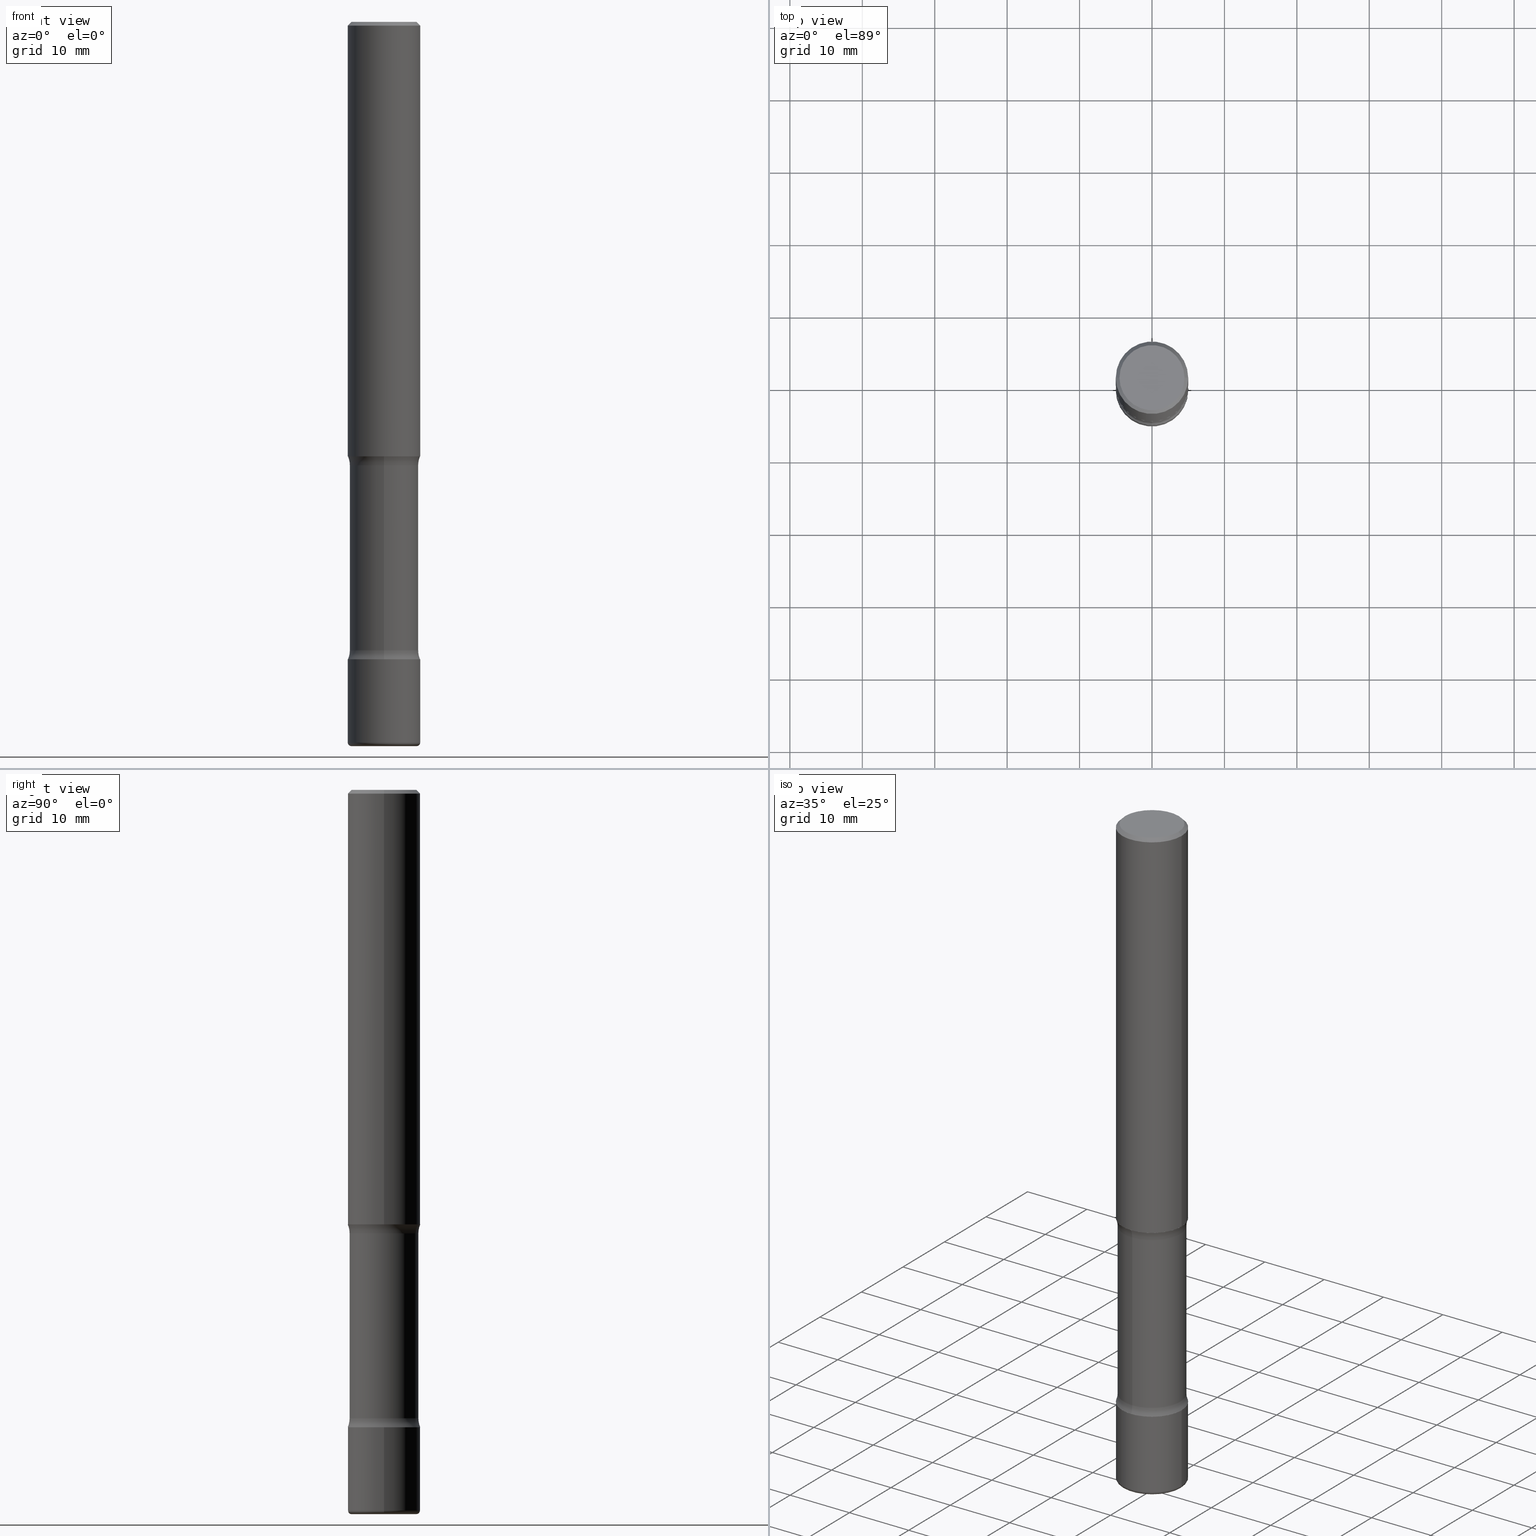
[diagram: canonical four-view strip — front | top / right | iso, engineering-drawing reading convention]
A machine part, canonical four-view strip (front | top / right | iso — engineering-drawing reading convention). The complete STEP part file that produces these views, byte-faithful:
ISO-10303-21;
HEADER;
FILE_DESCRIPTION (( 'STEP AP203' ),
    '1' );
FILE_NAME ('45191.STEP',
    '2024-03-02T05:09:36',
    ( '' ),
    ( '' ),
    'SwSTEP 2.0',
    'SolidWorks 2023',
    '' );
FILE_SCHEMA (( 'CONFIG_CONTROL_DESIGN' ));
ENDSEC;

DATA;
#1 = ORIENTED_EDGE ( 'NONE', *, *, #170, .F. ) ;
#2 = PERSON_AND_ORGANIZATION_ROLE ( 'creator' ) ;
#3 = DIRECTION ( 'NONE',  ( -2.445468806185136597E-29, 3.491481338843145583E-15, 1.000000000000000000 ) ) ;
#4 = ORIENTED_EDGE ( 'NONE', *, *, #67, .F. ) ;
#5 = DIRECTION ( 'NONE',  ( -2.445468806185136597E-29, 3.491481338843145583E-15, 1.000000000000000000 ) ) ;
#6 = EDGE_CURVE ( 'NONE', #455, #334, #110, .T. ) ;
#7 = AXIS2_PLACEMENT_3D ( 'NONE', #384, #115, #289 ) ;
#8 = CARTESIAN_POINT ( 'NONE',  ( -2.140475375304634878E-15, -0.3120000000000120455, -3.415963825191530745 ) ) ;
#9 = ORIENTED_EDGE ( 'NONE', *, *, #209, .T. ) ;
#10 = EDGE_CURVE ( 'NONE', #535, #131, #158, .T. ) ;
#11 = CARTESIAN_POINT ( 'NONE',  ( 5.776686413970530874E-29, -8.247577218615281204E-15, -2.362200000000000966 ) ) ;
#12 = CARTESIAN_POINT ( 'NONE',  ( 0.1771500000000001129, -1.498299386937758739E-14, -3.937000000000000277 ) ) ;
#13 = EDGE_CURVE ( 'NONE', #221, #528, #420, .T. ) ;
#14 = EDGE_CURVE ( 'NONE', #86, #58, #79, .T. ) ;
#15 = CARTESIAN_POINT ( 'NONE',  ( 5.776686413970530874E-29, -8.247577218615281204E-15, -2.362200000000000966 ) ) ;
#16 = ORIENTED_EDGE ( 'NONE', *, *, #10, .F. ) ;
#17 = CIRCLE ( 'NONE', #133, 0.1250000000000000278 ) ;
#18 = AXIS2_PLACEMENT_3D ( 'NONE', #448, #322, #234 ) ;
#19 = DIRECTION ( 'NONE',  ( 6.982962677686266711E-15, 1.000000000000000000, -2.921762560068727439E-15 ) ) ;
#20 = ORIENTED_EDGE ( 'NONE', *, *, #554, .T. ) ;
#21 = MANIFOLD_SOLID_BREP ( 'Body-Move/Copy2[1]', #356 ) ;
#22 = LINE ( 'NONE', #279, #178 ) ;
#23 = VERTEX_POINT ( 'NONE', #12 ) ;
#24 = CARTESIAN_POINT ( 'NONE',  ( 0.000000000000000000, 0.000000000000000000, 0.000000000000000000 ) ) ;
#25 = ORIENTED_EDGE ( 'NONE', *, *, #6, .F. ) ;
#26 = CIRCLE ( 'NONE', #140, 0.1968499999999999139 ) ;
#27 = PRODUCT_DEFINITION_FORMATION_WITH_SPECIFIED_SOURCE ( 'ANY', '', #61, .NOT_KNOWN. ) ;
#28 =( NAMED_UNIT ( * ) SI_UNIT ( $, .STERADIAN. ) SOLID_ANGLE_UNIT ( ) );
#29 = FACE_OUTER_BOUND ( 'NONE', #65, .T. ) ;
#30 = CC_DESIGN_PERSON_AND_ORGANIZATION_ASSIGNMENT ( #243, #198, ( #329 ) ) ;
#31 = CARTESIAN_POINT ( 'NONE',  ( 1.234936949548815012E-15, 0.1768499999999998407, -6.153342185293596592E-16 ) ) ;
#32 = CARTESIAN_POINT ( 'NONE',  ( 4.890937612370289799E-31, -6.982962677686315028E-17, -0.02000000000000006981 ) ) ;
#33 = EDGE_CURVE ( 'NONE', #334, #455, #223, .T. ) ;
#34 = DIRECTION ( 'NONE',  ( 6.982962677686265922E-15, 1.000000000000000000, -3.240269232523581255E-15 ) ) ;
#35 = AXIS2_PLACEMENT_3D ( 'NONE', #512, #127, #301 ) ;
#36 = DIRECTION ( 'NONE',  ( -1.000000000000000000, 6.982962677686265922E-15, -4.876176775795935793E-29 ) ) ;
#37 = FACE_OUTER_BOUND ( 'NONE', #148, .T. ) ;
#38 = FACE_OUTER_BOUND ( 'NONE', #42, .T. ) ;
#39 = DIRECTION ( 'NONE',  ( -2.445468806185136597E-29, 3.491481338843145583E-15, 1.000000000000000000 ) ) ;
#40 = AXIS2_PLACEMENT_3D ( 'NONE', #427, #5, #349 ) ;
#41 = AXIS2_PLACEMENT_3D ( 'NONE', #360, #64, #273 ) ;
#42 = EDGE_LOOP ( 'NONE', ( #397, #449, #25, #187 ) ) ;
#43 = COORDINATED_UNIVERSAL_TIME_OFFSET ( 5, 0, .BEHIND. ) ;
#44 = DIRECTION ( 'NONE',  ( 6.860497997771529985E-15, 1.000000000000000000, 0.000000000000000000 ) ) ;
#45 = ORIENTED_EDGE ( 'NONE', *, *, #10, .T. ) ;
#46 = APPROVAL_DATE_TIME ( #520, #248 ) ;
#47 = FACE_OUTER_BOUND ( 'NONE', #260, .T. ) ;
#48 = EDGE_LOOP ( 'NONE', ( #525, #20 ) ) ;
#49 = EDGE_CURVE ( 'NONE', #350, #23, #51, .T. ) ;
#50 = CARTESIAN_POINT ( 'NONE',  ( -0.1968499999999999139, 1.304766576325677916E-15, -0.02000000000000006981 ) ) ;
#51 = CIRCLE ( 'NONE', #372, 0.1771500000000001129 ) ;
#52 = VECTOR ( 'NONE', #415, 39.37007874015748143 ) ;
#53 = ORIENTED_EDGE ( 'NONE', *, *, #6, .T. ) ;
#54 = LOCAL_TIME ( 0, 9, 36.00000000000000000, #437 ) ;
#55 = FACE_OUTER_BOUND ( 'NONE', #230, .T. ) ;
#56 = ORIENTED_EDGE ( 'NONE', *, *, #367, .T. ) ;
#57 = LINE ( 'NONE', #59, #254 ) ;
#58 = VERTEX_POINT ( 'NONE', #205 ) ;
#59 = CARTESIAN_POINT ( 'NONE',  ( -0.1968500000000000250, 1.398703375343757393E-15, -9.682923725166783677E-30 ) ) ;
#60 = EDGE_LOOP ( 'NONE', ( #370, #97 ) ) ;
#61 = PRODUCT ( '45191', '45191', '', ( #468 ) ) ;
#62 = CC_DESIGN_PERSON_AND_ORGANIZATION_ASSIGNMENT ( #93, #305, ( #27 ) ) ;
#63 = LOCAL_TIME ( 0, 9, 36.00000000000000000, #43 ) ;
#64 = DIRECTION ( 'NONE',  ( 2.445468806185136597E-29, -3.491481338843145583E-15, -1.000000000000000000 ) ) ;
#65 = EDGE_LOOP ( 'NONE', ( #95, #284 ) ) ;
#66 = DIRECTION ( 'NONE',  ( -2.445468806185136877E-29, 3.491481338843145188E-15, 1.000000000000000000 ) ) ;
#67 = EDGE_CURVE ( 'NONE', #23, #453, #513, .T. ) ;
#68 = DIRECTION ( 'NONE',  ( -2.445468806185136597E-29, 3.491481338843145583E-15, 1.000000000000000000 ) ) ;
#69 = COORDINATED_UNIVERSAL_TIME_OFFSET ( 5, 0, .BEHIND. ) ;
#70 = CARTESIAN_POINT ( 'NONE',  ( 9.579634954469039174E-29, -1.367717984865026012E-14, -3.917300000000001337 ) ) ;
#71 = TOROIDAL_SURFACE ( 'NONE', #479, 0.3120000000000001106, 0.1250000000000000000 ) ;
#72 = CIRCLE ( 'NONE', #424, 0.1968500000000001360 ) ;
#73 = PLANE ( 'NONE',  #91 ) ;
#74 = FACE_OUTER_BOUND ( 'NONE', #428, .T. ) ;
#75 = EDGE_CURVE ( 'NONE', #496, #92, #345, .T. ) ;
#76 = CARTESIAN_POINT ( 'NONE',  ( -2.140475375304662094E-15, -0.3120000000000089369, -2.410836174808469679 ) ) ;
#77 =( CONVERSION_BASED_UNIT ( 'INCH', #204 ) LENGTH_UNIT ( ) NAMED_UNIT ( #222 ) );
#78 = CARTESIAN_POINT ( 'NONE',  ( -1.350489030861272970E-15, -0.1968500000000089345, -2.362200000000000077 ) ) ;
#79 = CIRCLE ( 'NONE', #469, 0.1968500000000001360 ) ;
#80 = PERSON_AND_ORGANIZATION ( #385, #459 ) ;
#81 = CARTESIAN_POINT ( 'NONE',  ( 1.305814020727429623E-15, 0.1869999999999864826, -3.937000000000001609 ) ) ;
#82 = CARTESIAN_POINT ( 'NONE',  ( 0.000000000000000000, 0.000000000000000000, 0.000000000000000000 ) ) ;
#83 = CALENDAR_DATE ( 2024, 2, 3 ) ;
#84 = FACE_OUTER_BOUND ( 'NONE', #537, .T. ) ;
#85 = CC_DESIGN_DATE_AND_TIME_ASSIGNMENT ( #426, #343, ( #311 ) ) ;
#86 = VERTEX_POINT ( 'NONE', #547 ) ;
#87 = SHAPE_DEFINITION_REPRESENTATION ( #261, #347 ) ;
#88 = CLOSED_SHELL ( 'NONE', ( #272, #124, #461, #288, #506, #314, #348, #450 ) ) ;
#89 = DIRECTION ( 'NONE',  ( 2.438088387897960049E-29, -3.491481338843145188E-15, -1.000000000000000000 ) ) ;
#90 = TOROIDAL_SURFACE ( 'NONE', #35, 0.3120000000000001106, 0.1250000000000000000 ) ;
#91 = AXIS2_PLACEMENT_3D ( 'NONE', #31, #462, #251 ) ;
#92 = VERTEX_POINT ( 'NONE', #551 ) ;
#93 = PERSON_AND_ORGANIZATION ( #385, #459 ) ;
#94 = CARTESIAN_POINT ( 'NONE',  ( 9.710679322936699330E-29, -1.362728943200010467E-14, -3.937000000000001165 ) ) ;
#95 = ORIENTED_EDGE ( 'NONE', *, *, #371, .F. ) ;
#96 = ADVANCED_FACE ( 'NONE', ( #74 ), #553, .F. ) ;
#97 = ORIENTED_EDGE ( 'NONE', *, *, #317, .F. ) ;
#98 = APPROVAL ( #337, 'UNSPECIFIED' ) ;
#99 = FACE_OUTER_BOUND ( 'NONE', #366, .T. ) ;
#100 = AXIS2_PLACEMENT_3D ( 'NONE', #116, #383, #460 ) ;
#101 = ORIENTED_EDGE ( 'NONE', *, *, #203, .T. ) ;
#102 = APPROVAL_PERSON_ORGANIZATION ( #511, #248, #302 ) ;
#103 = CARTESIAN_POINT ( 'NONE',  ( 9.579634954469039174E-29, -1.367717984865026012E-14, -3.917300000000001337 ) ) ;
#104 = ORIENTED_EDGE ( 'NONE', *, *, #227, .F. ) ;
#105 = CARTESIAN_POINT ( 'NONE',  ( -1.316701078222246809E-15, -0.1870000000000088813, -2.410836174808470567 ) ) ;
#106 = ORIENTED_EDGE ( 'NONE', *, *, #491, .F. ) ;
#107 = CC_DESIGN_PERSON_AND_ORGANIZATION_ASSIGNMENT ( #474, #2, ( #27 ) ) ;
#108 = CARTESIAN_POINT ( 'NONE',  ( 0.1968500000000000250, -1.374596203102541608E-15, 9.598753983154300858E-30 ) ) ;
#109 = ORIENTED_EDGE ( 'NONE', *, *, #227, .T. ) ;
#110 = CIRCLE ( 'NONE', #235, 0.1870000000000000551 ) ;
#111 = CONICAL_SURFACE ( 'NONE', #423, 0.1968499999999999139, 0.7853981633974479459 ) ;
#112 = CARTESIAN_POINT ( 'NONE',  ( 0.000000000000000000, 0.000000000000000000, 0.000000000000000000 ) ) ;
#113 = ORIENTED_EDGE ( 'NONE', *, *, #203, .F. ) ;
#114 = DIRECTION ( 'NONE',  ( 6.982962677686265922E-15, 1.000000000000000000, -2.775563112689114723E-15 ) ) ;
#115 = DIRECTION ( 'NONE',  ( -2.445468806185136597E-29, 3.491481338843145583E-15, 1.000000000000000000 ) ) ;
#116 = CARTESIAN_POINT ( 'NONE',  ( 5.776686413970530874E-29, -8.247577218615281204E-15, -2.362200000000000966 ) ) ;
#117 = AXIS2_PLACEMENT_3D ( 'NONE', #82, #39, #475 ) ;
#118 = TOROIDAL_SURFACE ( 'NONE', #126, 0.3120000000000002771, 0.1250000000000000278 ) ;
#119 = DIRECTION ( 'NONE',  ( 6.860497997771529985E-15, 1.000000000000000000, 0.000000000000000000 ) ) ;
#120 = COORDINATED_UNIVERSAL_TIME_OFFSET ( 5, 0, .BEHIND. ) ;
#121 = DIRECTION ( 'NONE',  ( 1.000000000000000000, -6.982962677686268288E-15, 0.000000000000000000 ) ) ;
#122 = DATE_AND_TIME ( #162, #550 ) ;
#123 = DIRECTION ( 'NONE',  ( 2.438088387897960049E-29, -3.491481338843145188E-15, -1.000000000000000000 ) ) ;
#124 = ADVANCED_FACE ( 'NONE', ( #163 ), #71, .F. ) ;
#125 = AXIS2_PLACEMENT_3D ( 'NONE', #358, #218, #128 ) ;
#126 = AXIS2_PLACEMENT_3D ( 'NONE', #286, #147, #487 ) ;
#127 = DIRECTION ( 'NONE',  ( 2.620889282446383185E-29, -3.240269232523581650E-15, -1.000000000000000000 ) ) ;
#128 = DIRECTION ( 'NONE',  ( 1.000000000000000000, -6.982962677686269077E-15, 4.883557194083113462E-29 ) ) ;
#129 = ORIENTED_EDGE ( 'NONE', *, *, #320, .T. ) ;
#130 = DIRECTION ( 'NONE',  ( 6.982962677686266711E-15, 1.000000000000000000, -2.921762560068727439E-15 ) ) ;
#131 = VERTEX_POINT ( 'NONE', #466 ) ;
#132 = FACE_OUTER_BOUND ( 'NONE', #363, .T. ) ;
#133 = AXIS2_PLACEMENT_3D ( 'NONE', #76, #503, #119 ) ;
#134 = VERTEX_POINT ( 'NONE', #78 ) ;
#135 = SECURITY_CLASSIFICATION_LEVEL ( 'unclassified' ) ;
#136 = APPROVAL ( #249, 'UNSPECIFIED' ) ;
#137 = DIRECTION ( 'NONE',  ( -2.445468806185136597E-29, 3.491481338843145583E-15, 1.000000000000000000 ) ) ;
#138 = ORIENTED_EDGE ( 'NONE', *, *, #317, .T. ) ;
#139 = FACE_OUTER_BOUND ( 'NONE', #490, .T. ) ;
#140 = AXIS2_PLACEMENT_3D ( 'NONE', #32, #379, #339 ) ;
#141 = EDGE_LOOP ( 'NONE', ( #287, #353 ) ) ;
#142 = EDGE_CURVE ( 'NONE', #221, #455, #338, .T. ) ;
#143 = FACE_OUTER_BOUND ( 'NONE', #174, .T. ) ;
#144 = ORIENTED_EDGE ( 'NONE', *, *, #510, .F. ) ;
#145 = DIRECTION ( 'NONE',  ( -2.445468806185136877E-29, 3.491481338843145188E-15, 1.000000000000000000 ) ) ;
#146 = DIRECTION ( 'NONE',  ( 6.982962677686266711E-15, 1.000000000000000000, -2.921762560068729806E-15 ) ) ;
#147 = DIRECTION ( 'NONE',  ( 2.620889282446383185E-29, -3.240269232523581650E-15, -1.000000000000000000 ) ) ;
#148 = EDGE_LOOP ( 'NONE', ( #258, #237, #104, #144 ) ) ;
#149 = CIRCLE ( 'NONE', #340, 0.1968500000000004690 ) ;
#150 = EDGE_CURVE ( 'NONE', #528, #134, #149, .T. ) ;
#151 =( LENGTH_UNIT ( ) NAMED_UNIT ( * ) SI_UNIT ( $, .METRE. ) );
#152 = DIRECTION ( 'NONE',  ( -2.445468806185136597E-29, 3.491481338843145583E-15, 1.000000000000000000 ) ) ;
#153 = EDGE_CURVE ( 'NONE', #439, #334, #421, .T. ) ;
#154 = DATE_TIME_ROLE ( 'creation_date' ) ;
#155 = DIRECTION ( 'NONE',  ( -2.445468806185136597E-29, 3.491481338843145583E-15, 1.000000000000000000 ) ) ;
#156 = ADVANCED_FACE ( 'NONE', ( #29 ), #377, .T. ) ;
#157 = DIRECTION ( 'NONE',  ( 1.000000000000000000, -6.982962677686274599E-15, 0.000000000000000000 ) ) ;
#158 = CIRCLE ( 'NONE', #309, 0.1968499999999999139 ) ;
#159 = CARTESIAN_POINT ( 'NONE',  ( -1.043851414335219820E-46, 1.490343170380447200E-32, 4.268512490100411279E-18 ) ) ;
#160 = EDGE_CURVE ( 'NONE', #532, #232, #177, .T. ) ;
#161 = CARTESIAN_POINT ( 'NONE',  ( 5.776686413970530874E-29, -8.247577218615281204E-15, -2.362200000000000966 ) ) ;
#162 = CALENDAR_DATE ( 2024, 2, 3 ) ;
#163 = FACE_OUTER_BOUND ( 'NONE', #313, .T. ) ;
#164 = APPROVAL_DATE_TIME ( #122, #98 ) ;
#165 = DIRECTION ( 'NONE',  ( 2.620889282446383185E-29, -3.240269232523581650E-15, -1.000000000000000000 ) ) ;
#166 = ADVANCED_FACE ( 'NONE', ( #37 ), #211, .T. ) ;
#167 = AXIS2_PLACEMENT_3D ( 'NONE', #210, #298, #470 ) ;
#168 = LINE ( 'NONE', #50, #451 ) ;
#169 = ORIENTED_EDGE ( 'NONE', *, *, #464, .F. ) ;
#170 = EDGE_CURVE ( 'NONE', #530, #453, #364, .T. ) ;
#171 = DIRECTION ( 'NONE',  ( -1.000000000000000000, 6.982962677686265922E-15, -4.876176775795935793E-29 ) ) ;
#172 = ORIENTED_EDGE ( 'NONE', *, *, #75, .F. ) ;
#173 = CARTESIAN_POINT ( 'NONE',  ( 8.472571225909027026E-29, -1.209658624655596689E-14, -3.464600000000001234 ) ) ;
#174 = EDGE_LOOP ( 'NONE', ( #271, #336, #228, #478 ) ) ;
#175 = CIRCLE ( 'NONE', #431, 0.1771500000000001129 ) ;
#176 = DIRECTION ( 'NONE',  ( 6.982962677686265922E-15, 1.000000000000000000, -3.240269232523581650E-15 ) ) ;
#177 = CIRCLE ( 'NONE', #167, 0.1768499999999998407 ) ;
#178 = VECTOR ( 'NONE', #452, 39.37007874015748143 ) ;
#179 = ORIENTED_EDGE ( 'NONE', *, *, #75, .T. ) ;
#180 = DIRECTION ( 'NONE',  ( -2.445468806185136597E-29, 3.491481338843145583E-15, 1.000000000000000000 ) ) ;
#181 = ORIENTED_EDGE ( 'NONE', *, *, #281, .T. ) ;
#182 = DIRECTION ( 'NONE',  ( 2.620889282446383185E-29, -3.240269232523582044E-15, -1.000000000000000000 ) ) ;
#183 = ORIENTED_EDGE ( 'NONE', *, *, #150, .T. ) ;
#184 = CC_DESIGN_PERSON_AND_ORGANIZATION_ASSIGNMENT ( #351, #556, ( #311 ) ) ;
#185 = CARTESIAN_POINT ( 'NONE',  ( 9.579634954469039174E-29, -1.367717984865026012E-14, -3.917300000000001337 ) ) ;
#186 = CIRCLE ( 'NONE', #422, 0.1968500000000004690 ) ;
#187 = ORIENTED_EDGE ( 'NONE', *, *, #142, .F. ) ;
#188 = CIRCLE ( 'NONE', #472, 0.1768499999999998407 ) ;
#189 = CARTESIAN_POINT ( 'NONE',  ( -0.1968500000000001082, 1.398703375343757985E-15, -9.682923725166787881E-30 ) ) ;
#190 = EDGE_CURVE ( 'NONE', #559, #455, #390, .T. ) ;
#191 = EDGE_LOOP ( 'NONE', ( #326, #106, #316, #183 ) ) ;
#192 = CARTESIAN_POINT ( 'NONE',  ( 4.890937612370289799E-31, -6.982962677686315028E-17, -0.02000000000000006981 ) ) ;
#193 = DIRECTION ( 'NONE',  ( 1.000000000000000000, -6.982962677686266711E-15, 0.000000000000000000 ) ) ;
#194 = DATE_AND_TIME ( #504, #226 ) ;
#195 = DIRECTION ( 'NONE',  ( -1.000000000000000000, 6.982962677686265922E-15, -4.883557194083112340E-29 ) ) ;
#196 = AXIS2_PLACEMENT_3D ( 'NONE', #112, #180, #401 ) ;
#197 = AXIS2_PLACEMENT_3D ( 'NONE', #15, #182, #362 ) ;
#198 = PERSON_AND_ORGANIZATION_ROLE ( 'creator' ) ;
#199 = DIRECTION ( 'NONE',  ( 2.620889282446383185E-29, -3.240269232523581650E-15, -1.000000000000000000 ) ) ;
#200 = APPLICATION_PROTOCOL_DEFINITION ( 'international standard', 'config_control_design', 1994, #292 ) ;
#201 = MANIFOLD_SOLID_BREP ( 'Body-Move/Copy2[4]', #88 ) ;
#202 = DIRECTION ( 'NONE',  ( -1.000000000000000000, 6.982962677686265922E-15, -4.883557194083112340E-29 ) ) ;
#203 = EDGE_CURVE ( 'NONE', #131, #535, #26, .T. ) ;
#204 = LENGTH_MEASURE_WITH_UNIT ( LENGTH_MEASURE( 0.02539999999999999897 ), #151 );
#205 = CARTESIAN_POINT ( 'NONE',  ( 0.1968500000000001360, -1.347118244965850850E-14, -3.464600000000001234 ) ) ;
#206 = TOROIDAL_SURFACE ( 'NONE', #262, 0.3120000000000002771, 0.1250000000000000278 ) ;
#207 = CC_DESIGN_APPROVAL ( #98, ( #27 ) ) ;
#208 = FACE_OUTER_BOUND ( 'NONE', #48, .T. ) ;
#209 = EDGE_CURVE ( 'NONE', #439, #134, #17, .T. ) ;
#210 = CARTESIAN_POINT ( 'NONE',  ( -1.043851414335219820E-46, 1.490343170380447200E-32, 4.268512490100411279E-18 ) ) ;
#211 = CYLINDRICAL_SURFACE ( 'NONE', #7, 0.1968500000000001082 ) ;
#212 = DIRECTION ( 'NONE',  ( 6.982962677686265133E-15, 1.000000000000000000, -2.775563112689110384E-15 ) ) ;
#213 = EDGE_LOOP ( 'NONE', ( #483, #181, #268, #488 ) ) ;
#214 = ADVANCED_FACE ( 'NONE', ( #463 ), #250, .T. ) ;
#215 = CIRCLE ( 'NONE', #541, 0.1870000000000002216 ) ;
#216 = CONICAL_SURFACE ( 'NONE', #41, 0.1968499999999999139, 0.7853981633974479459 ) ;
#217 = DIRECTION ( 'NONE',  ( -1.000000000000000000, 7.105427357600976615E-15, 0.000000000000000000 ) ) ;
#218 = DIRECTION ( 'NONE',  ( -2.445468806185136597E-29, 3.491481338843145583E-15, 1.000000000000000000 ) ) ;
#219 = ORIENTED_EDGE ( 'NONE', *, *, #392, .F. ) ;
#220 = CARTESIAN_POINT ( 'NONE',  ( -1.316701078222217030E-15, -0.1870000000000119900, -3.415963825191531189 ) ) ;
#221 = VERTEX_POINT ( 'NONE', #391 ) ;
#222 = DIMENSIONAL_EXPONENTS ( 1.000000000000000000, 0.000000000000000000, 0.000000000000000000, 0.000000000000000000, 0.000000000000000000, 0.000000000000000000, 0.000000000000000000 ) ;
#223 = CIRCLE ( 'NONE', #540, 0.1870000000000000551 ) ;
#224 = AXIS2_PLACEMENT_3D ( 'NONE', #482, #477, #217 ) ;
#225 = PLANE ( 'NONE',  #245 ) ;
#226 = LOCAL_TIME ( 0, 9, 36.00000000000000000, #69 ) ;
#227 = EDGE_CURVE ( 'NONE', #58, #86, #458, .T. ) ;
#228 = ORIENTED_EDGE ( 'NONE', *, *, #510, .T. ) ;
#229 = PLANE ( 'NONE',  #197 ) ;
#230 = EDGE_LOOP ( 'NONE', ( #412, #539, #240, #101 ) ) ;
#231 = DIRECTION ( 'NONE',  ( 2.620889282446383185E-29, -3.240269232523581650E-15, -1.000000000000000000 ) ) ;
#232 = VERTEX_POINT ( 'NONE', #557 ) ;
#233 = ADVANCED_FACE ( 'NONE', ( #132 ), #259, .T. ) ;
#234 = DIRECTION ( 'NONE',  ( 6.982962677686266711E-15, 1.000000000000000000, -2.921762560068729017E-15 ) ) ;
#235 = AXIS2_PLACEMENT_3D ( 'NONE', #278, #447, #146 ) ;
#236 = VECTOR ( 'NONE', #247, 39.37007874015748143 ) ;
#237 = ORIENTED_EDGE ( 'NONE', *, *, #494, .T. ) ;
#238 = APPROVAL_PERSON_ORGANIZATION ( #417, #98, #378 ) ;
#239 = FACE_OUTER_BOUND ( 'NONE', #60, .T. ) ;
#240 = ORIENTED_EDGE ( 'NONE', *, *, #269, .T. ) ;
#241 = DIRECTION ( 'NONE',  ( 1.000000000000000000, -6.982962677686268288E-15, 0.000000000000000000 ) ) ;
#242 = CARTESIAN_POINT ( 'NONE',  ( 2.178684355438173716E-15, 0.3119999999999915619, -2.410836174808471899 ) ) ;
#243 = PERSON_AND_ORGANIZATION ( #385, #459 ) ;
#244 = CARTESIAN_POINT ( 'NONE',  ( 9.627810689950883669E-29, -1.374596203102546341E-14, -3.937000000000000277 ) ) ;
#245 = AXIS2_PLACEMENT_3D ( 'NONE', #173, #396, #264 ) ;
#246 = CC_DESIGN_SECURITY_CLASSIFICATION ( #311, ( #27 ) ) ;
#247 = DIRECTION ( 'NONE',  ( 2.620889282446383185E-29, -3.240269232523582044E-15, -1.000000000000000000 ) ) ;
#248 = APPROVAL ( #481, 'UNSPECIFIED' ) ;
#249 = APPROVAL_STATUS ( 'not_yet_approved' ) ;
#250 = CYLINDRICAL_SURFACE ( 'NONE', #332, 0.1968500000000000250 ) ;
#251 = DIRECTION ( 'NONE',  ( -1.000000000000000000, 6.982962677686265922E-15, -4.876176775795935793E-29 ) ) ;
#252 = DIRECTION ( 'NONE',  ( 2.620889282446383185E-29, -3.240269232523581650E-15, -1.000000000000000000 ) ) ;
#253 = AXIS2_PLACEMENT_3D ( 'NONE', #161, #296, #555 ) ;
#254 = VECTOR ( 'NONE', #66, 39.37007874015748143 ) ;
#255 = APPROVAL_ROLE ( '' ) ;
#256 = DIRECTION ( 'NONE',  ( 6.982962677686265133E-15, 1.000000000000000000, -2.775563112689110384E-15 ) ) ;
#257 = DIRECTION ( 'NONE',  ( 2.620889282446383185E-29, -3.240269232523581650E-15, -1.000000000000000000 ) ) ;
#258 = ORIENTED_EDGE ( 'NONE', *, *, #467, .T. ) ;
#259 = CYLINDRICAL_SURFACE ( 'NONE', #117, 0.1968500000000000250 ) ;
#260 = EDGE_LOOP ( 'NONE', ( #400, #476, #324, #4 ) ) ;
#261 = PRODUCT_DEFINITION_SHAPE ( 'NONE', 'NONE',  #329 ) ;
#262 = AXIS2_PLACEMENT_3D ( 'NONE', #352, #344, #176 ) ;
#263 = AXIS2_PLACEMENT_3D ( 'NONE', #24, #419, #293 ) ;
#264 = DIRECTION ( 'NONE',  ( -6.982962677686265922E-15, -1.000000000000000000, 3.240269232523582044E-15 ) ) ;
#265 = ORIENTED_EDGE ( 'NONE', *, *, #14, .T. ) ;
#266 = EDGE_CURVE ( 'NONE', #350, #530, #533, .T. ) ;
#267 = CARTESIAN_POINT ( 'NONE',  ( 8.472571225909027026E-29, -1.209658624655596689E-14, -3.464600000000001234 ) ) ;
#268 = ORIENTED_EDGE ( 'NONE', *, *, #142, .T. ) ;
#269 = EDGE_CURVE ( 'NONE', #532, #131, #168, .T. ) ;
#270 = CARTESIAN_POINT ( 'NONE',  ( 8.472571225909027026E-29, -1.209658624655596689E-14, -3.464600000000001234 ) ) ;
#271 = ORIENTED_EDGE ( 'NONE', *, *, #494, .F. ) ;
#272 = ADVANCED_FACE ( 'NONE', ( #38 ), #388, .T. ) ;
#273 = DIRECTION ( 'NONE',  ( -1.000000000000000000, 6.982962677686266711E-15, 0.000000000000000000 ) ) ;
#274 =( GEOMETRIC_REPRESENTATION_CONTEXT ( 3 ) GLOBAL_UNCERTAINTY_ASSIGNED_CONTEXT ( ( #507 ) ) GLOBAL_UNIT_ASSIGNED_CONTEXT ( ( #77, #498, #28 ) ) REPRESENTATION_CONTEXT ( 'NONE', 'WORKASPACE' ) );
#275 = CARTESIAN_POINT ( 'NONE',  ( 4.890937612370289799E-31, -6.982962677686315028E-17, -0.02000000000000006981 ) ) ;
#276 = DESIGN_CONTEXT ( 'detailed design', #292, 'design' ) ;
#277 = DIRECTION ( 'NONE',  ( 2.445468806185136597E-29, -3.491481338843145583E-15, -1.000000000000000000 ) ) ;
#278 = CARTESIAN_POINT ( 'NONE',  ( 8.345101196614320923E-29, -1.193899194573644426E-14, -3.415963825191531633 ) ) ;
#279 = CARTESIAN_POINT ( 'NONE',  ( 0.1968499999999999139, -1.420318657638188530E-15, -0.02000000000000006981 ) ) ;
#280 = ORIENTED_EDGE ( 'NONE', *, *, #190, .T. ) ;
#281 = EDGE_CURVE ( 'NONE', #439, #221, #215, .T. ) ;
#282 = CYLINDRICAL_SURFACE ( 'NONE', #196, 0.1968500000000001082 ) ;
#283 = AXIS2_PLACEMENT_3D ( 'NONE', #267, #312, #438 ) ;
#284 = ORIENTED_EDGE ( 'NONE', *, *, #49, .F. ) ;
#285 = VECTOR ( 'NONE', #534, 39.37007874015748143 ) ;
#286 = CARTESIAN_POINT ( 'NONE',  ( 5.704860736508115224E-29, -8.690574314718193977E-15, -2.410836174808470567 ) ) ;
#287 = ORIENTED_EDGE ( 'NONE', *, *, #515, .T. ) ;
#288 = ADVANCED_FACE ( 'NONE', ( #527 ), #206, .F. ) ;
#289 = DIRECTION ( 'NONE',  ( 1.000000000000000000, -6.982962677686266711E-15, 4.876176775795935793E-29 ) ) ;
#290 = DIRECTION ( 'NONE',  ( 1.000000000000000000, -6.982962677686265922E-15, 0.000000000000000000 ) ) ;
#291 = TOROIDAL_SURFACE ( 'NONE', #125, 0.1771500000000001129, 0.01969999999999933263 ) ;
#292 = APPLICATION_CONTEXT ( 'configuration controlled 3d designs of mechanical parts and assemblies' ) ;
#293 = DIRECTION ( 'NONE',  ( 1.000000000000000000, 0.000000000000000000, 0.000000000000000000 ) ) ;
#294 = DIRECTION ( 'NONE',  ( -6.982962677686265133E-15, -1.000000000000000000, 0.000000000000000000 ) ) ;
#295 = ADVANCED_FACE ( 'NONE', ( #84 ), #306, .F. ) ;
#296 = DIRECTION ( 'NONE',  ( -2.445468806185136597E-29, 3.491481338843145583E-15, 1.000000000000000000 ) ) ;
#297 = APPLICATION_PROTOCOL_DEFINITION ( 'international standard', 'config_control_design', 1994, #405 ) ;
#298 = DIRECTION ( 'NONE',  ( -2.445468806185136597E-29, 3.491481338843145583E-15, 1.000000000000000000 ) ) ;
#299 = AXIS2_PLACEMENT_3D ( 'NONE', #270, #89, #171 ) ;
#300 = LOCAL_TIME ( 0, 9, 36.00000000000000000, #120 ) ;
#301 = DIRECTION ( 'NONE',  ( 6.982962677686265922E-15, 1.000000000000000000, -3.240269232523581255E-15 ) ) ;
#302 = APPROVAL_ROLE ( '' ) ;
#303 = DIRECTION ( 'NONE',  ( -0.7071067811865472397, 2.468850131082253905E-15, -0.7071067811865477948 ) ) ;
#304 = ORIENTED_EDGE ( 'NONE', *, *, #464, .T. ) ;
#305 = PERSON_AND_ORGANIZATION_ROLE ( 'design_supplier' ) ;
#306 = PLANE ( 'NONE',  #299 ) ;
#307 = EDGE_CURVE ( 'NONE', #319, #559, #486, .T. ) ;
#308 = ORIENTED_EDGE ( 'NONE', *, *, #266, .F. ) ;
#309 = AXIS2_PLACEMENT_3D ( 'NONE', #275, #68, #193 ) ;
#310 = CIRCLE ( 'NONE', #374, 0.1250000000000000000 ) ;
#311 = SECURITY_CLASSIFICATION ( '', '', #135 ) ;
#312 = DIRECTION ( 'NONE',  ( 2.620889282446383185E-29, -3.240269232523581650E-15, -1.000000000000000000 ) ) ;
#313 = EDGE_LOOP ( 'NONE', ( #430, #129, #389, #355 ) ) ;
#314 = ADVANCED_FACE ( 'NONE', ( #521 ), #225, .F. ) ;
#315 = DIRECTION ( 'NONE',  ( 1.000000000000000000, -6.860497997771530774E-15, 4.843875340643255873E-29 ) ) ;
#316 = ORIENTED_EDGE ( 'NONE', *, *, #13, .T. ) ;
#317 = EDGE_CURVE ( 'NONE', #134, #528, #186, .T. ) ;
#318 = FACE_OUTER_BOUND ( 'NONE', #213, .T. ) ;
#319 = VERTEX_POINT ( 'NONE', #434 ) ;
#320 = EDGE_CURVE ( 'NONE', #319, #334, #310, .T. ) ;
#321 = AXIS2_PLACEMENT_3D ( 'NONE', #342, #381, #157 ) ;
#322 = DIRECTION ( 'NONE',  ( 2.620889282446383185E-29, -3.240269232523581650E-15, -1.000000000000000000 ) ) ;
#323 = ADVANCED_FACE ( 'NONE', ( #47 ), #291, .T. ) ;
#324 = ORIENTED_EDGE ( 'NONE', *, *, #467, .F. ) ;
#325 = CARTESIAN_POINT ( 'NONE',  ( 8.472571225909027026E-29, -1.209658624655596689E-14, -3.464600000000001234 ) ) ;
#326 = ORIENTED_EDGE ( 'NONE', *, *, #209, .F. ) ;
#327 = DIRECTION ( 'NONE',  ( 1.000000000000000000, -6.982962677686265922E-15, 0.000000000000000000 ) ) ;
#328 = ORIENTED_EDGE ( 'NONE', *, *, #13, .F. ) ;
#329 = PRODUCT_DEFINITION ( 'UNKNOWN', '', #27, #276 ) ;
#330 = AXIS2_PLACEMENT_3D ( 'NONE', #242, #195, #375 ) ;
#331 = DIRECTION ( 'NONE',  ( -2.445468806185136597E-29, 3.491481338843145583E-15, 1.000000000000000000 ) ) ;
#332 = AXIS2_PLACEMENT_3D ( 'NONE', #418, #3, #398 ) ;
#333 = CIRCLE ( 'NONE', #432, 0.1870000000000002216 ) ;
#334 = VERTEX_POINT ( 'NONE', #220 ) ;
#335 = CARTESIAN_POINT ( 'NONE',  ( 1.374596203102600181E-15, 0.1968499999999919203, -2.362200000000001410 ) ) ;
#336 = ORIENTED_EDGE ( 'NONE', *, *, #170, .T. ) ;
#337 = APPROVAL_STATUS ( 'not_yet_approved' ) ;
#338 = LINE ( 'NONE', #81, #236 ) ;
#339 = DIRECTION ( 'NONE',  ( 1.000000000000000000, -6.982962677686266711E-15, 0.000000000000000000 ) ) ;
#340 = AXIS2_PLACEMENT_3D ( 'NONE', #499, #252, #256 ) ;
#341 = DIRECTION ( 'NONE',  ( -2.445468806185136597E-29, 3.491481338843145583E-15, 1.000000000000000000 ) ) ;
#342 = CARTESIAN_POINT ( 'NONE',  ( 0.1771500000000001129, -1.491421168700238251E-14, -3.917300000000001337 ) ) ;
#343 = DATE_TIME_ROLE ( 'classification_date' ) ;
#344 = DIRECTION ( 'NONE',  ( 2.620889282446383185E-29, -3.240269232523581650E-15, -1.000000000000000000 ) ) ;
#345 = CIRCLE ( 'NONE', #253, 0.1968500000000001082 ) ;
#346 = AXIS2_PLACEMENT_3D ( 'NONE', #185, #407, #327 ) ;
#347 = ADVANCED_BREP_SHAPE_REPRESENTATION ( '45191', ( #21, #387, #201, #263 ), #274 ) ;
#348 = ADVANCED_FACE ( 'NONE', ( #393 ), #90, .F. ) ;
#349 = DIRECTION ( 'NONE',  ( 1.000000000000000000, -6.982962677686263555E-15, 0.000000000000000000 ) ) ;
#350 = VERTEX_POINT ( 'NONE', #440 ) ;
#351 = PERSON_AND_ORGANIZATION ( #385, #459 ) ;
#352 = CARTESIAN_POINT ( 'NONE',  ( 5.704860736508115224E-29, -8.690574314718193977E-15, -2.410836174808470567 ) ) ;
#353 = ORIENTED_EDGE ( 'NONE', *, *, #307, .T. ) ;
#354 = CARTESIAN_POINT ( 'NONE',  ( 5.710772910234841729E-29, -8.682107745441492905E-15, -2.410836174808471011 ) ) ;
#355 = ORIENTED_EDGE ( 'NONE', *, *, #190, .F. ) ;
#356 = CLOSED_SHELL ( 'NONE', ( #166, #323, #156, #386, #395, #295 ) ) ;
#357 = CIRCLE ( 'NONE', #441, 0.1968500000000001082 ) ;
#358 = CARTESIAN_POINT ( 'NONE',  ( 9.579634954469039174E-29, -1.367717984865026012E-14, -3.917300000000001337 ) ) ;
#359 = EDGE_LOOP ( 'NONE', ( #493, #304, #16, #519 ) ) ;
#360 = CARTESIAN_POINT ( 'NONE',  ( 4.890937612370289799E-31, -6.982962677686315028E-17, -0.02000000000000006981 ) ) ;
#361 = ORIENTED_EDGE ( 'NONE', *, *, #67, .T. ) ;
#362 = DIRECTION ( 'NONE',  ( 6.982962677686265922E-15, 1.000000000000000000, -3.240269232523582044E-15 ) ) ;
#363 = EDGE_LOOP ( 'NONE', ( #169, #179, #56, #113 ) ) ;
#364 = CIRCLE ( 'NONE', #382, 0.1968500000000000805 ) ;
#365 = CARTESIAN_POINT ( 'NONE',  ( 0.1968500000000001082, -1.374596203102542397E-15, 9.598753983154305062E-30 ) ) ;
#366 = EDGE_LOOP ( 'NONE', ( #394, #9, #138, #328 ) ) ;
#367 = EDGE_CURVE ( 'NONE', #92, #535, #473, .T. ) ;
#368 = EDGE_LOOP ( 'NONE', ( #445, #410, #45, #522 ) ) ;
#369 = DIRECTION ( 'NONE',  ( -1.000000000000000000, 6.982962677686266711E-15, 0.000000000000000000 ) ) ;
#370 = ORIENTED_EDGE ( 'NONE', *, *, #150, .F. ) ;
#371 = EDGE_CURVE ( 'NONE', #23, #350, #175, .T. ) ;
#372 = AXIS2_PLACEMENT_3D ( 'NONE', #244, #341, #121 ) ;
#373 = PERSON_AND_ORGANIZATION_ROLE ( 'design_owner' ) ;
#374 = AXIS2_PLACEMENT_3D ( 'NONE', #8, #315, #44 ) ;
#375 = DIRECTION ( 'NONE',  ( -6.982962677686265133E-15, -1.000000000000000000, 0.000000000000000000 ) ) ;
#376 = CALENDAR_DATE ( 2024, 2, 3 ) ;
#377 = PLANE ( 'NONE',  #526 ) ;
#378 = APPROVAL_ROLE ( '' ) ;
#379 = DIRECTION ( 'NONE',  ( -2.445468806185136597E-29, 3.491481338843145583E-15, 1.000000000000000000 ) ) ;
#380 = CARTESIAN_POINT ( 'NONE',  ( 1.374596203102626805E-15, 0.1968499999999879790, -3.464600000000001678 ) ) ;
#381 = DIRECTION ( 'NONE',  ( -6.982962677686266711E-15, -1.000000000000000000, 3.491481338843145583E-15 ) ) ;
#382 = AXIS2_PLACEMENT_3D ( 'NONE', #70, #500, #290 ) ;
#383 = DIRECTION ( 'NONE',  ( -2.438088387897960049E-29, 3.491481338843145188E-15, 1.000000000000000000 ) ) ;
#384 = CARTESIAN_POINT ( 'NONE',  ( 0.000000000000000000, 0.000000000000000000, 0.000000000000000000 ) ) ;
#385 = PERSON ( 'UNSPECIFIED', 'UNSPECIFIED', 'UNSPECIFIED', ('UNSPECIFIED'), ('UNSPECIFIED'), ('UNSPECIFIED') ) ;
#386 = ADVANCED_FACE ( 'NONE', ( #139 ), #558, .T. ) ;
#387 = MANIFOLD_SOLID_BREP ( 'Body-Move/Copy2[2]', #406 ) ;
#388 = CYLINDRICAL_SURFACE ( 'NONE', #414, 0.1870000000000001106 ) ;
#389 = ORIENTED_EDGE ( 'NONE', *, *, #33, .T. ) ;
#390 = CIRCLE ( 'NONE', #471, 0.1250000000000000000 ) ;
#391 = CARTESIAN_POINT ( 'NONE',  ( 1.305814020727390377E-15, 0.1869999999999915341, -2.410836174808471455 ) ) ;
#392 = EDGE_CURVE ( 'NONE', #92, #496, #357, .T. ) ;
#393 = FACE_OUTER_BOUND ( 'NONE', #404, .T. ) ;
#394 = ORIENTED_EDGE ( 'NONE', *, *, #281, .F. ) ;
#395 = ADVANCED_FACE ( 'NONE', ( #143 ), #282, .T. ) ;
#396 = DIRECTION ( 'NONE',  ( -2.620889282446383185E-29, 3.240269232523582044E-15, 1.000000000000000000 ) ) ;
#397 = ORIENTED_EDGE ( 'NONE', *, *, #491, .T. ) ;
#398 = DIRECTION ( 'NONE',  ( 1.000000000000000000, -6.982962677686265922E-15, 4.876176775795935793E-29 ) ) ;
#399 = CC_DESIGN_PERSON_AND_ORGANIZATION_ASSIGNMENT ( #80, #373, ( #61 ) ) ;
#400 = ORIENTED_EDGE ( 'NONE', *, *, #371, .T. ) ;
#401 = DIRECTION ( 'NONE',  ( 1.000000000000000000, -6.982962677686266711E-15, 4.876176775795935793E-29 ) ) ;
#402 = DIRECTION ( 'NONE',  ( 1.000000000000000000, -6.982962677686263555E-15, 0.000000000000000000 ) ) ;
#403 = CARTESIAN_POINT ( 'NONE',  ( -0.1968500000000001082, -2.760000047352312097E-15, -2.362200000000000966 ) ) ;
#404 = EDGE_LOOP ( 'NONE', ( #408, #435, #280, #53 ) ) ;
#405 = APPLICATION_CONTEXT ( 'configuration controlled 3d designs of mechanical parts and assemblies' ) ;
#406 = CLOSED_SHELL ( 'NONE', ( #214, #433, #436, #516, #96, #233 ) ) ;
#407 = DIRECTION ( 'NONE',  ( -2.445468806185136597E-29, 3.491481338843145583E-15, 1.000000000000000000 ) ) ;
#408 = ORIENTED_EDGE ( 'NONE', *, *, #320, .F. ) ;
#409 = FACE_OUTER_BOUND ( 'NONE', #368, .T. ) ;
#410 = ORIENTED_EDGE ( 'NONE', *, *, #444, .T. ) ;
#411 = DIRECTION ( 'NONE',  ( 1.000000000000000000, -6.982962677686269866E-15, 0.000000000000000000 ) ) ;
#412 = ORIENTED_EDGE ( 'NONE', *, *, #444, .F. ) ;
#413 = DIRECTION ( 'NONE',  ( 2.620889282446383185E-29, -3.240269232523581650E-15, -1.000000000000000000 ) ) ;
#414 = AXIS2_PLACEMENT_3D ( 'NONE', #94, #523, #518 ) ;
#415 = DIRECTION ( 'NONE',  ( 2.620889282446383185E-29, -3.240269232523582044E-15, -1.000000000000000000 ) ) ;
#416 = CARTESIAN_POINT ( 'NONE',  ( 2.178684355438199354E-15, 0.3119999999999881757, -3.415963825191532965 ) ) ;
#417 = PERSON_AND_ORGANIZATION ( #385, #459 ) ;
#418 = CARTESIAN_POINT ( 'NONE',  ( 0.000000000000000000, 0.000000000000000000, 0.000000000000000000 ) ) ;
#419 = DIRECTION ( 'NONE',  ( 0.000000000000000000, 0.000000000000000000, 1.000000000000000000 ) ) ;
#420 = CIRCLE ( 'NONE', #330, 0.1250000000000000278 ) ;
#421 = LINE ( 'NONE', #509, #52 ) ;
#422 = AXIS2_PLACEMENT_3D ( 'NONE', #429, #257, #212 ) ;
#423 = AXIS2_PLACEMENT_3D ( 'NONE', #192, #277, #369 ) ;
#424 = AXIS2_PLACEMENT_3D ( 'NONE', #325, #413, #114 ) ;
#425 = CARTESIAN_POINT ( 'NONE',  ( 2.658603989477930593E-28, 1.053918739275372060E-14, -3.937000000000000721 ) ) ;
#426 = DATE_AND_TIME ( #83, #63 ) ;
#427 = CARTESIAN_POINT ( 'NONE',  ( 8.472571225909027026E-29, -1.209658624655596689E-14, -3.464600000000001234 ) ) ;
#428 = EDGE_LOOP ( 'NONE', ( #219, #172 ) ) ;
#429 = CARTESIAN_POINT ( 'NONE',  ( 5.583302880940132263E-29, -8.524513444621968702E-15, -2.362200000000000966 ) ) ;
#430 = ORIENTED_EDGE ( 'NONE', *, *, #307, .F. ) ;
#431 = AXIS2_PLACEMENT_3D ( 'NONE', #492, #331, #241 ) ;
#432 = AXIS2_PLACEMENT_3D ( 'NONE', #443, #231, #19 ) ;
#433 = ADVANCED_FACE ( 'NONE', ( #409 ), #111, .T. ) ;
#434 = CARTESIAN_POINT ( 'NONE',  ( -1.350489030861242007E-15, -0.1968500000000122097, -3.464600000000000346 ) ) ;
#435 = ORIENTED_EDGE ( 'NONE', *, *, #515, .F. ) ;
#436 = ADVANCED_FACE ( 'NONE', ( #55 ), #216, .T. ) ;
#437 = COORDINATED_UNIVERSAL_TIME_OFFSET ( 5, 0, .BEHIND. ) ;
#438 = DIRECTION ( 'NONE',  ( 6.982962677686265922E-15, 1.000000000000000000, -2.775563112689114723E-15 ) ) ;
#439 = VERTEX_POINT ( 'NONE', #105 ) ;
#440 = CARTESIAN_POINT ( 'NONE',  ( -0.1771500000000001129, -1.238285602396647797E-14, -3.937000000000000277 ) ) ;
#441 = AXIS2_PLACEMENT_3D ( 'NONE', #11, #489, #411 ) ;
#442 = CIRCLE ( 'NONE', #346, 0.1968500000000000805 ) ;
#443 = CARTESIAN_POINT ( 'NONE',  ( 5.710772910234841729E-29, -8.682107745441492905E-15, -2.410836174808471011 ) ) ;
#444 = EDGE_CURVE ( 'NONE', #232, #535, #22, .T. ) ;
#445 = ORIENTED_EDGE ( 'NONE', *, *, #554, .F. ) ;
#446 = CARTESIAN_POINT ( 'NONE',  ( 1.305814020727415620E-15, 0.1869999999999880924, -3.415963825191532521 ) ) ;
#447 = DIRECTION ( 'NONE',  ( 2.620889282446383185E-29, -3.240269232523581650E-15, -1.000000000000000000 ) ) ;
#448 = CARTESIAN_POINT ( 'NONE',  ( 9.710679322936699330E-29, -1.362728943200010467E-14, -3.937000000000001165 ) ) ;
#449 = ORIENTED_EDGE ( 'NONE', *, *, #153, .T. ) ;
#450 = ADVANCED_FACE ( 'NONE', ( #318 ), #454, .T. ) ;
#451 = VECTOR ( 'NONE', #303, 39.37007874015748143 ) ;
#452 = DIRECTION ( 'NONE',  ( 0.7071067811865472397, -7.319954787623254468E-15, -0.7071067811865477948 ) ) ;
#453 = VERTEX_POINT ( 'NONE', #484 ) ;
#454 = CYLINDRICAL_SURFACE ( 'NONE', #18, 0.1870000000000001106 ) ;
#455 = VERTEX_POINT ( 'NONE', #446 ) ;
#456 = CARTESIAN_POINT ( 'NONE',  ( 8.353632977562746871E-29, -1.192677394981948142E-14, -3.415963825191531633 ) ) ;
#457 = DIRECTION ( 'NONE',  ( 1.000000000000000000, -6.982962677686266711E-15, 4.875932113059882493E-29 ) ) ;
#458 = CIRCLE ( 'NONE', #40, 0.1968500000000001360 ) ;
#459 = ORGANIZATION ( 'UNSPECIFIED', 'UNSPECIFIED', '' ) ;
#460 = DIRECTION ( 'NONE',  ( 1.000000000000000000, -6.982962677686265922E-15, 4.876176775795935793E-29 ) ) ;
#461 = ADVANCED_FACE ( 'NONE', ( #99 ), #118, .F. ) ;
#462 = DIRECTION ( 'NONE',  ( 2.438088387897960049E-29, -3.491481338843145188E-15, -1.000000000000000000 ) ) ;
#463 = FACE_OUTER_BOUND ( 'NONE', #359, .T. ) ;
#464 = EDGE_CURVE ( 'NONE', #496, #131, #57, .T. ) ;
#465 = CARTESIAN_POINT ( 'NONE',  ( 0.1968499999999999139, -1.420318657638188530E-15, -0.02000000000000006981 ) ) ;
#466 = CARTESIAN_POINT ( 'NONE',  ( -0.1968499999999999139, 1.304766576325677916E-15, -0.02000000000000006981 ) ) ;
#467 = EDGE_CURVE ( 'NONE', #453, #530, #442, .T. ) ;
#468 = MECHANICAL_CONTEXT ( 'NONE', #405, 'mechanical' ) ;
#469 = AXIS2_PLACEMENT_3D ( 'NONE', #544, #152, #402 ) ;
#470 = DIRECTION ( 'NONE',  ( 1.000000000000000000, -6.982962677686266711E-15, 4.875932113059882493E-29 ) ) ;
#471 = AXIS2_PLACEMENT_3D ( 'NONE', #416, #202, #294 ) ;
#472 = AXIS2_PLACEMENT_3D ( 'NONE', #159, #155, #457 ) ;
#473 = LINE ( 'NONE', #108, #549 ) ;
#474 = PERSON_AND_ORGANIZATION ( #385, #459 ) ;
#475 = DIRECTION ( 'NONE',  ( 1.000000000000000000, -6.982962677686265922E-15, 4.876176775795935793E-29 ) ) ;
#476 = ORIENTED_EDGE ( 'NONE', *, *, #266, .T. ) ;
#477 = DIRECTION ( 'NONE',  ( 7.105427357601001859E-15, 1.000000000000000000, -3.491481338843145583E-15 ) ) ;
#478 = ORIENTED_EDGE ( 'NONE', *, *, #14, .F. ) ;
#479 = AXIS2_PLACEMENT_3D ( 'NONE', #456, #199, #34 ) ;
#480 = CC_DESIGN_APPROVAL ( #136, ( #329 ) ) ;
#481 = APPROVAL_STATUS ( 'not_yet_approved' ) ;
#482 = CARTESIAN_POINT ( 'NONE',  ( -0.1771500000000001129, -1.241845339225124164E-14, -3.917300000000001337 ) ) ;
#483 = ORIENTED_EDGE ( 'NONE', *, *, #153, .F. ) ;
#484 = CARTESIAN_POINT ( 'NONE',  ( 0.1968499999999997752, -1.505177605175279857E-14, -3.917300000000001337 ) ) ;
#485 = ORIENTED_EDGE ( 'NONE', *, *, #49, .T. ) ;
#486 = CIRCLE ( 'NONE', #283, 0.1968500000000001360 ) ;
#487 = DIRECTION ( 'NONE',  ( 6.982962677686265922E-15, 1.000000000000000000, -3.240269232523581650E-15 ) ) ;
#488 = ORIENTED_EDGE ( 'NONE', *, *, #33, .F. ) ;
#489 = DIRECTION ( 'NONE',  ( -2.445468806185136597E-29, 3.491481338843145583E-15, 1.000000000000000000 ) ) ;
#490 = EDGE_LOOP ( 'NONE', ( #308, #485, #361, #1 ) ) ;
#491 = EDGE_CURVE ( 'NONE', #221, #439, #333, .T. ) ;
#492 = CARTESIAN_POINT ( 'NONE',  ( 9.627810689950883669E-29, -1.374596203102546341E-14, -3.937000000000000277 ) ) ;
#493 = ORIENTED_EDGE ( 'NONE', *, *, #392, .T. ) ;
#494 = EDGE_CURVE ( 'NONE', #530, #86, #536, .T. ) ;
#495 = CC_DESIGN_APPROVAL ( #248, ( #311 ) ) ;
#496 = VERTEX_POINT ( 'NONE', #403 ) ;
#497 = CC_DESIGN_DATE_AND_TIME_ASSIGNMENT ( #508, #154, ( #329 ) ) ;
#498 =( NAMED_UNIT ( * ) PLANE_ANGLE_UNIT ( ) SI_UNIT ( $, .RADIAN. ) );
#499 = CARTESIAN_POINT ( 'NONE',  ( 5.583302880940132263E-29, -8.524513444621968702E-15, -2.362200000000000966 ) ) ;
#500 = DIRECTION ( 'NONE',  ( -2.445468806185136597E-29, 3.491481338843145583E-15, 1.000000000000000000 ) ) ;
#501 = COORDINATED_UNIVERSAL_TIME_OFFSET ( 5, 0, .BEHIND. ) ;
#502 = AXIS2_PLACEMENT_3D ( 'NONE', #103, #137, #529 ) ;
#503 = DIRECTION ( 'NONE',  ( 1.000000000000000000, -6.860497997771530774E-15, 4.843875340643255873E-29 ) ) ;
#504 = CALENDAR_DATE ( 2024, 2, 3 ) ;
#505 = CARTESIAN_POINT ( 'NONE',  ( 8.345101196614320923E-29, -1.193899194573644426E-14, -3.415963825191531633 ) ) ;
#506 = ADVANCED_FACE ( 'NONE', ( #239 ), #229, .F. ) ;
#507 = UNCERTAINTY_MEASURE_WITH_UNIT (LENGTH_MEASURE( 1.000000000000000082E-05 ), #77, 'distance_accuracy_value', 'NONE');
#508 = DATE_AND_TIME ( #376, #300 ) ;
#509 = CARTESIAN_POINT ( 'NONE',  ( -1.282913125583180022E-15, -0.1870000000000137386, -3.937000000000000721 ) ) ;
#510 = EDGE_CURVE ( 'NONE', #453, #58, #531, .T. ) ;
#511 = PERSON_AND_ORGANIZATION ( #385, #459 ) ;
#512 = CARTESIAN_POINT ( 'NONE',  ( 8.353632977562746871E-29, -1.192677394981948142E-14, -3.415963825191531633 ) ) ;
#513 = CIRCLE ( 'NONE', #321, 0.01969999999999931528 ) ;
#514 = VECTOR ( 'NONE', #145, 39.37007874015748143 ) ;
#515 = EDGE_CURVE ( 'NONE', #559, #319, #72, .T. ) ;
#516 = ADVANCED_FACE ( 'NONE', ( #208 ), #73, .F. ) ;
#517 = CALENDAR_DATE ( 2024, 2, 3 ) ;
#518 = DIRECTION ( 'NONE',  ( 6.982962677686266711E-15, 1.000000000000000000, -2.921762560068729017E-15 ) ) ;
#519 = ORIENTED_EDGE ( 'NONE', *, *, #367, .F. ) ;
#520 = DATE_AND_TIME ( #517, #54 ) ;
#521 = FACE_OUTER_BOUND ( 'NONE', #141, .T. ) ;
#522 = ORIENTED_EDGE ( 'NONE', *, *, #269, .F. ) ;
#523 = DIRECTION ( 'NONE',  ( 2.620889282446383185E-29, -3.240269232523581650E-15, -1.000000000000000000 ) ) ;
#524 = PRODUCT_RELATED_PRODUCT_CATEGORY ( 'detail', '', ( #61 ) ) ;
#525 = ORIENTED_EDGE ( 'NONE', *, *, #160, .T. ) ;
#526 = AXIS2_PLACEMENT_3D ( 'NONE', #425, #123, #36 ) ;
#527 = FACE_OUTER_BOUND ( 'NONE', #191, .T. ) ;
#528 = VERTEX_POINT ( 'NONE', #335 ) ;
#529 = DIRECTION ( 'NONE',  ( 1.000000000000000000, -6.982962677686269077E-15, 4.883557194083113462E-29 ) ) ;
#530 = VERTEX_POINT ( 'NONE', #543 ) ;
#531 = LINE ( 'NONE', #365, #285 ) ;
#532 = VERTEX_POINT ( 'NONE', #546 ) ;
#533 = CIRCLE ( 'NONE', #224, 0.01969999999999931528 ) ;
#534 = DIRECTION ( 'NONE',  ( -2.445468806185136877E-29, 3.491481338843145188E-15, 1.000000000000000000 ) ) ;
#535 = VERTEX_POINT ( 'NONE', #465 ) ;
#536 = LINE ( 'NONE', #189, #514 ) ;
#537 = EDGE_LOOP ( 'NONE', ( #109, #265 ) ) ;
#538 = DIRECTION ( 'NONE',  ( -2.445468806185136877E-29, 3.491481338843145188E-15, 1.000000000000000000 ) ) ;
#539 = ORIENTED_EDGE ( 'NONE', *, *, #160, .F. ) ;
#540 = AXIS2_PLACEMENT_3D ( 'NONE', #505, #165, #545 ) ;
#541 = AXIS2_PLACEMENT_3D ( 'NONE', #354, #560, #130 ) ;
#542 = APPROVAL_PERSON_ORGANIZATION ( #552, #136, #255 ) ;
#543 = CARTESIAN_POINT ( 'NONE',  ( -0.1968499999999997752, -1.227847647330650312E-14, -3.917300000000001337 ) ) ;
#544 = CARTESIAN_POINT ( 'NONE',  ( 8.472571225909027026E-29, -1.209658624655596689E-14, -3.464600000000001234 ) ) ;
#545 = DIRECTION ( 'NONE',  ( 6.982962677686266711E-15, 1.000000000000000000, -2.921762560068729806E-15 ) ) ;
#546 = CARTESIAN_POINT ( 'NONE',  ( -0.1768499999999998407, 1.269851762937246464E-15, 4.268512490091652920E-18 ) ) ;
#547 = CARTESIAN_POINT ( 'NONE',  ( -0.1968500000000001360, -1.148817967225935572E-14, -3.464600000000001234 ) ) ;
#548 = APPROVAL_DATE_TIME ( #194, #136 ) ;
#549 = VECTOR ( 'NONE', #538, 39.37007874015748143 ) ;
#550 = LOCAL_TIME ( 0, 9, 36.00000000000000000, #501 ) ;
#551 = CARTESIAN_POINT ( 'NONE',  ( 0.1968500000000001082, -9.622173421717824390E-15, -2.362200000000000966 ) ) ;
#552 = PERSON_AND_ORGANIZATION ( #385, #459 ) ;
#553 = PLANE ( 'NONE',  #100 ) ;
#554 = EDGE_CURVE ( 'NONE', #232, #532, #188, .T. ) ;
#555 = DIRECTION ( 'NONE',  ( 1.000000000000000000, -6.982962677686269866E-15, 0.000000000000000000 ) ) ;
#556 = PERSON_AND_ORGANIZATION_ROLE ( 'classification_officer' ) ;
#557 = CARTESIAN_POINT ( 'NONE',  ( 0.1768499999999998407, -1.316798864272041352E-15, 4.268512490109333727E-18 ) ) ;
#558 = TOROIDAL_SURFACE ( 'NONE', #502, 0.1771500000000001129, 0.01969999999999933263 ) ;
#559 = VERTEX_POINT ( 'NONE', #380 ) ;
#560 = DIRECTION ( 'NONE',  ( 2.620889282446383185E-29, -3.240269232523581650E-15, -1.000000000000000000 ) ) ;
ENDSEC;
END-ISO-10303-21;
